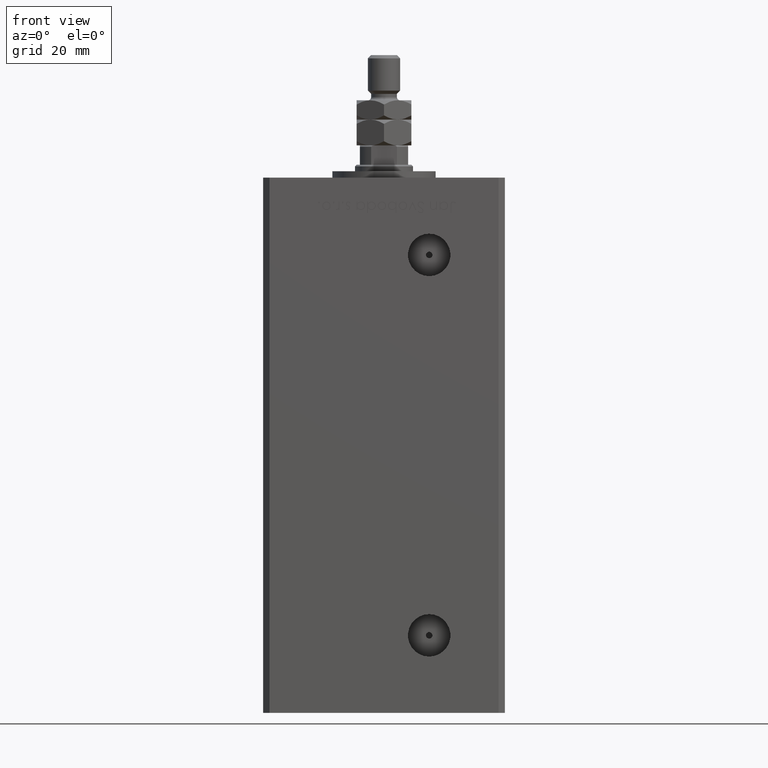
[diagram: clean part render]
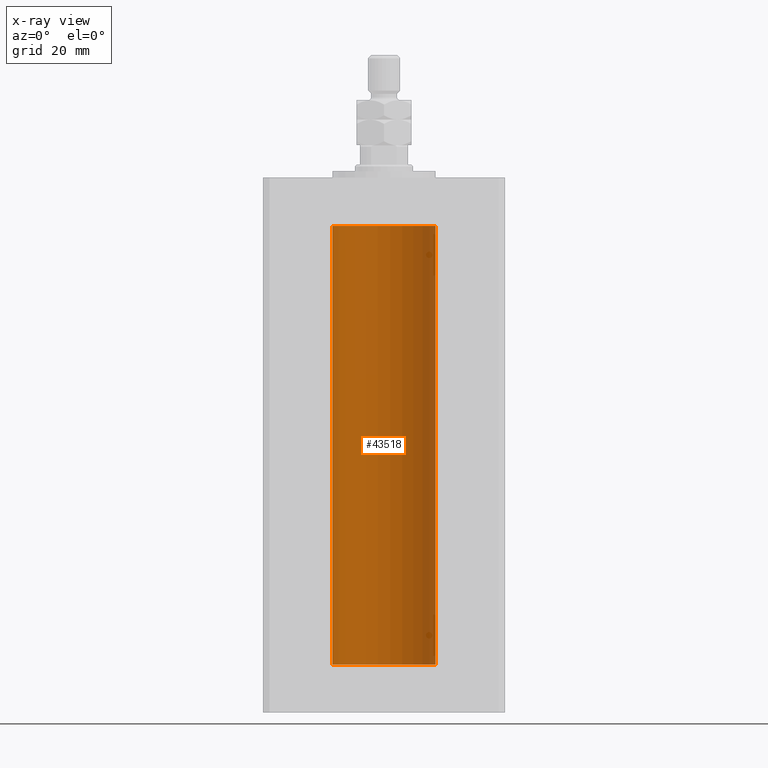
[diagram: x-ray — body ghosted, one internal face saturated and labeled with its STEP entity id]
A machine part, front view, then the same camera in x-ray: the body is ghosted and one INTERNAL B-rep face — a face not visible from any outside direction — is saturated and labeled: STEP entity #43518.
In plain terms, the highlighted cylindrical surface (partial cylindrical patch) has radius 16 mm, axis along (-0, -0, -1).
Its self-contained STEP definition (entity closure, byte-faithful):
#24 = CIRCLE ( 'NONE', #34757, 16.00000000000000000 ) ;
#4041 = EDGE_CURVE ( 'NONE', #35217, #45629, #24, .T. ) ;
#4555 = LINE ( 'NONE', #12701, #27385 ) ;
#4654 = CARTESIAN_POINT ( 'NONE',  ( 16.00000000000000000, 1.959434878635765131E-15, 0.000000000000000000 ) ) ;
#4735 = DIRECTION ( 'NONE',  ( 1.000000000000000000, 0.000000000000000000, 0.000000000000000000 ) ) ;
#5108 = EDGE_CURVE ( 'NONE', #26282, #39803, #46951, .T. ) ;
#6572 = CARTESIAN_POINT ( 'NONE',  ( 0.000000000000000000, 0.000000000000000000, 136.0000000000000000 ) ) ;
#8004 = ORIENTED_EDGE ( 'NONE', *, *, #5108, .T. ) ;
#8825 = CARTESIAN_POINT ( 'NONE',  ( 0.000000000000000000, 0.000000000000000000, 0.000000000000000000 ) ) ;
#10658 = CARTESIAN_POINT ( 'NONE',  ( 16.00000000000000000, 1.959434878635765131E-15, 136.0000000000000000 ) ) ;
#12701 = CARTESIAN_POINT ( 'NONE',  ( 16.00000000000000000, 1.959434878635765131E-15, 136.0000000000000000 ) ) ;
#14827 = CARTESIAN_POINT ( 'NONE',  ( -16.00000000000000000, 0.000000000000000000, 136.0000000000000000 ) ) ;
#15084 = VECTOR ( 'NONE', #39589, 1000.000000000000000 ) ;
#15335 = CARTESIAN_POINT ( 'NONE',  ( -16.00000000000000000, 0.000000000000000000, 0.000000000000000000 ) ) ;
#15943 = DIRECTION ( 'NONE',  ( -0.000000000000000000, -0.000000000000000000, -1.000000000000000000 ) ) ;
#18941 = EDGE_CURVE ( 'NONE', #39803, #45629, #31139, .T. ) ;
#23566 = ORIENTED_EDGE ( 'NONE', *, *, #29243, .F. ) ;
#26282 = VERTEX_POINT ( 'NONE', #10658 ) ;
#27385 = VECTOR ( 'NONE', #29272, 1000.000000000000000 ) ;
#28178 = FACE_OUTER_BOUND ( 'NONE', #28290, .T. ) ;
#28290 = EDGE_LOOP ( 'NONE', ( #23566, #8004, #34617, #48180 ) ) ;
#29208 = AXIS2_PLACEMENT_3D ( 'NONE', #40701, #15943, #32800 ) ;
#29243 = EDGE_CURVE ( 'NONE', #26282, #35217, #4555, .T. ) ;
#29272 = DIRECTION ( 'NONE',  ( -0.000000000000000000, -0.000000000000000000, -1.000000000000000000 ) ) ;
#31139 = LINE ( 'NONE', #14827, #15084 ) ;
#32800 = DIRECTION ( 'NONE',  ( -1.000000000000000000, 0.000000000000000000, 0.000000000000000000 ) ) ;
#34617 = ORIENTED_EDGE ( 'NONE', *, *, #18941, .T. ) ;
#34757 = AXIS2_PLACEMENT_3D ( 'NONE', #8825, #41991, #4735 ) ;
#35217 = VERTEX_POINT ( 'NONE', #4654 ) ;
#39589 = DIRECTION ( 'NONE',  ( -0.000000000000000000, -0.000000000000000000, -1.000000000000000000 ) ) ;
#39803 = VERTEX_POINT ( 'NONE', #51644 ) ;
#40701 = CARTESIAN_POINT ( 'NONE',  ( 0.000000000000000000, 0.000000000000000000, 136.0000000000000000 ) ) ;
#41991 = DIRECTION ( 'NONE',  ( -0.000000000000000000, 0.000000000000000000, 1.000000000000000000 ) ) ;
#42596 = AXIS2_PLACEMENT_3D ( 'NONE', #6572, #52502, #48701 ) ;
#43518 = ADVANCED_FACE ( 'NONE', ( #28178 ), #53199, .F. ) ;
#45629 = VERTEX_POINT ( 'NONE', #15335 ) ;
#46951 = CIRCLE ( 'NONE', #42596, 16.00000000000000000 ) ;
#48180 = ORIENTED_EDGE ( 'NONE', *, *, #4041, .F. ) ;
#48701 = DIRECTION ( 'NONE',  ( 1.000000000000000000, 0.000000000000000000, 0.000000000000000000 ) ) ;
#51644 = CARTESIAN_POINT ( 'NONE',  ( -16.00000000000000000, 0.000000000000000000, 136.0000000000000000 ) ) ;
#52502 = DIRECTION ( 'NONE',  ( -0.000000000000000000, 0.000000000000000000, 1.000000000000000000 ) ) ;
#53199 = CYLINDRICAL_SURFACE ( 'NONE', #29208, 16.00000000000000000 ) ;